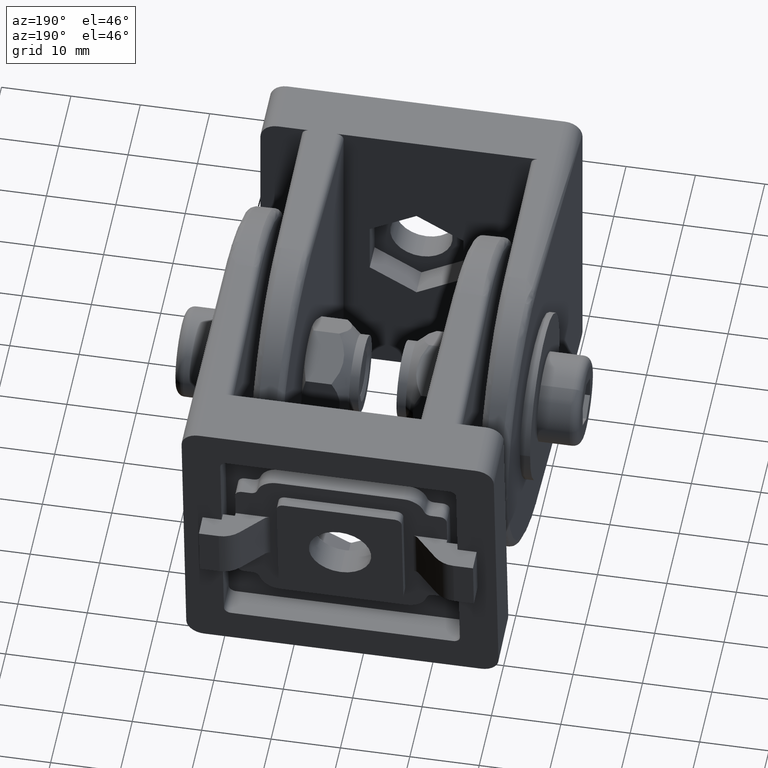
[diagram: clean part render]
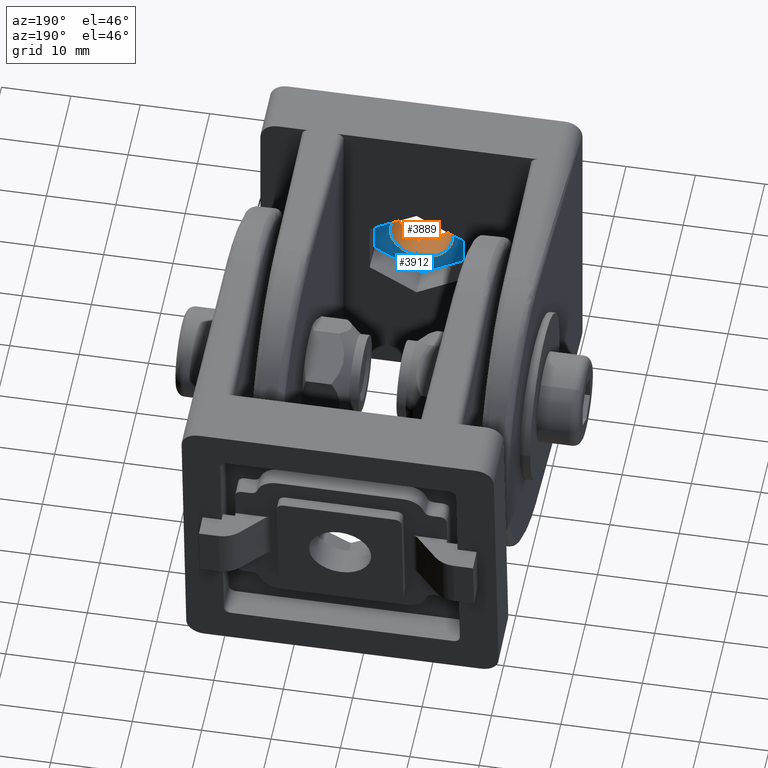
[diagram: same view with the hole feature highlighted: cylindrical wall and planar end face, labeled with their STEP entity ids]
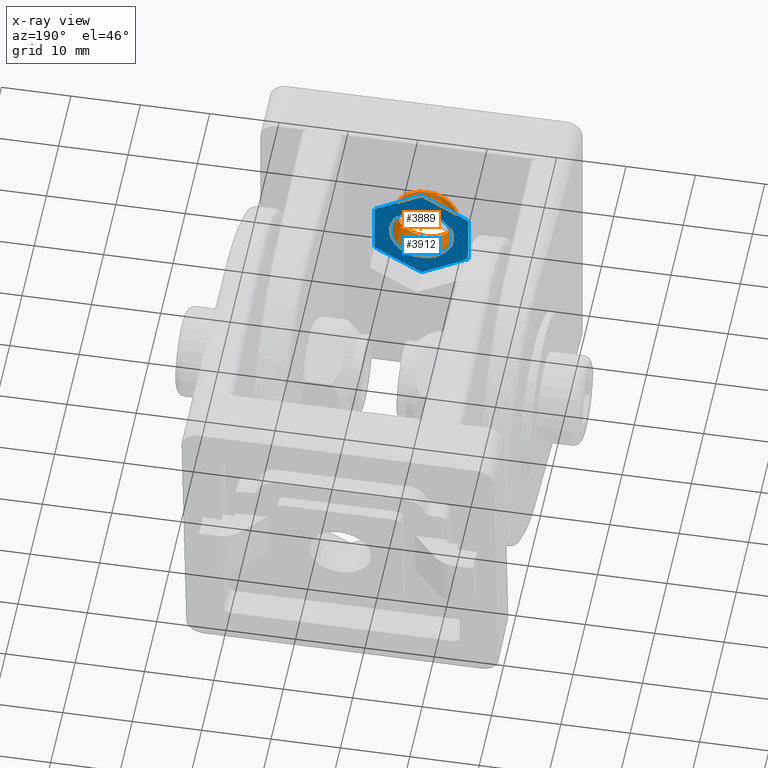
[diagram: x-ray of the same camera — body ghosted, the hole faces saturated]
A machine part, auxiliary view. The highlighted faces form one hole feature of diameter 9 mm: the cylindrical wall (entity #3889, orange) and its adjacent planar end face (entity #3912, blue) — they share a circular edge in the B-rep.
The next image is the same camera in x-ray (body ghosted, the hole faces saturated) — the bore reads through the body.
Wall:
#932=FACE_BOUND('',#1263,.T.);
#980=CYLINDRICAL_SURFACE('',#4129,4.5);
#1032=FACE_OUTER_BOUND('',#1262,.T.);
#1262=EDGE_LOOP('',(#2725));
#1263=EDGE_LOOP('',(#2726));
#1572=CIRCLE('',#4130,4.5);
#1573=CIRCLE('',#4131,4.5);
#1758=VERTEX_POINT('',#5734);
#1759=VERTEX_POINT('',#5736);
#2146=EDGE_CURVE('',#1758,#1758,#1572,.T.);
#2147=EDGE_CURVE('',#1759,#1759,#1573,.T.);
#2725=ORIENTED_EDGE('',*,*,#2146,.F.);
#2726=ORIENTED_EDGE('',*,*,#2147,.T.);
#3889=ADVANCED_FACE('',(#1032,#932),#980,.F.);
#4129=AXIS2_PLACEMENT_3D('',#5733,#4526,#4527);
#4130=AXIS2_PLACEMENT_3D('',#5735,#4528,#4529);
#4131=AXIS2_PLACEMENT_3D('',#5737,#4530,#4531);
#4526=DIRECTION('center_axis',(0.,-1.,0.));
#4527=DIRECTION('ref_axis',(0.,0.,-1.));
#4528=DIRECTION('center_axis',(2.56996070515083E-16,-1.,-2.56190093990169E-31));
#4529=DIRECTION('ref_axis',(-1.,-2.56996070515083E-16,-1.64599618650908E-47));
#4530=DIRECTION('center_axis',(0.,-1.,0.));
#4531=DIRECTION('ref_axis',(0.,0.,-1.));
#5733=CARTESIAN_POINT('Origin',(2.75545529808154E-15,54.,22.5));
#5734=CARTESIAN_POINT('',(2.75545529808154E-15,4.,18.));
#5735=CARTESIAN_POINT('Origin',(2.75545529808154E-15,4.,22.5));
#5736=CARTESIAN_POINT('',(2.75545529808154E-15,0.,18.));
#5737=CARTESIAN_POINT('Origin',(2.75545529808154E-15,0.,22.5));
End face:
#159=LINE('',#6230,#499);
#160=LINE('',#6232,#500);
#161=LINE('',#6234,#501);
#162=LINE('',#6236,#502);
#163=LINE('',#6238,#503);
#164=LINE('',#6239,#504);
#499=VECTOR('',#4712,7.79422863405995);
#500=VECTOR('',#4713,7.79422863405995);
#501=VECTOR('',#4714,7.79422863405995);
#502=VECTOR('',#4715,7.79422863405995);
#503=VECTOR('',#4716,7.79422863405995);
#504=VECTOR('',#4717,7.79422863405995);
#786=PLANE('',#4185);
#940=FACE_BOUND('',#1294,.T.);
#1055=FACE_OUTER_BOUND('',#1293,.T.);
#1293=EDGE_LOOP('',(#2884,#2885,#2886,#2887,#2888,#2889));
#1294=EDGE_LOOP('',(#2890));
#1572=CIRCLE('',#4130,4.5);
#1758=VERTEX_POINT('',#5734);
#1844=VERTEX_POINT('',#6228);
#1845=VERTEX_POINT('',#6229);
#1846=VERTEX_POINT('',#6231);
#1847=VERTEX_POINT('',#6233);
#1848=VERTEX_POINT('',#6235);
#1849=VERTEX_POINT('',#6237);
#2146=EDGE_CURVE('',#1758,#1758,#1572,.T.);
#2266=EDGE_CURVE('',#1844,#1845,#159,.T.);
#2267=EDGE_CURVE('',#1845,#1846,#160,.T.);
#2268=EDGE_CURVE('',#1846,#1847,#161,.T.);
#2269=EDGE_CURVE('',#1847,#1848,#162,.T.);
#2270=EDGE_CURVE('',#1848,#1849,#163,.T.);
#2271=EDGE_CURVE('',#1849,#1844,#164,.T.);
#2884=ORIENTED_EDGE('',*,*,#2266,.T.);
#2885=ORIENTED_EDGE('',*,*,#2267,.T.);
#2886=ORIENTED_EDGE('',*,*,#2268,.T.);
#2887=ORIENTED_EDGE('',*,*,#2269,.T.);
#2888=ORIENTED_EDGE('',*,*,#2270,.T.);
#2889=ORIENTED_EDGE('',*,*,#2271,.T.);
#2890=ORIENTED_EDGE('',*,*,#2146,.T.);
#3912=ADVANCED_FACE('',(#1055,#940),#786,.T.);
#4130=AXIS2_PLACEMENT_3D('',#5735,#4528,#4529);
#4185=AXIS2_PLACEMENT_3D('',#6227,#4710,#4711);
#4528=DIRECTION('center_axis',(2.56996070515083E-16,-1.,-2.56190093990169E-31));
#4529=DIRECTION('ref_axis',(-1.,-2.56996070515083E-16,-1.64599618650908E-47));
#4710=DIRECTION('center_axis',(-2.56996070515083E-16,1.,2.56190093990169E-31));
#4711=DIRECTION('ref_axis',(-1.,-4.44089209850063E-16,0.));
#4712=DIRECTION('',(-0.866025403784439,-2.22565125738838E-16,-0.499999999999999));
#4713=DIRECTION('',(-0.866025403784438,-2.22565125738839E-16,0.5));
#4714=DIRECTION('',(4.45130251477677E-16,0.,1.));
#4715=DIRECTION('',(0.866025403784439,2.22565125738838E-16,0.5));
#4716=DIRECTION('',(0.866025403784438,2.22565125738838E-16,-0.500000000000001));
#4717=DIRECTION('',(-4.45130251477677E-16,0.,-1.));
#5734=CARTESIAN_POINT('',(2.75545529808154E-15,4.,18.));
#5735=CARTESIAN_POINT('Origin',(2.75545529808154E-15,4.,22.5));
#6227=CARTESIAN_POINT('Origin',(2.84858109895346E-16,4.,14.7057713659401));
#6228=CARTESIAN_POINT('',(6.75,4.,18.60288568297));
#6229=CARTESIAN_POINT('',(-7.70988211545247E-16,4.,14.7057713659401));
#6230=CARTESIAN_POINT('',(6.75,4.,18.60288568297));
#6231=CARTESIAN_POINT('',(-6.75,4.,18.60288568297));
#6232=CARTESIAN_POINT('',(-7.70988211545247E-16,4.,14.7057713659401));
#6233=CARTESIAN_POINT('',(-6.74999999999999,4.,26.39711431703));
#6234=CARTESIAN_POINT('',(-6.75,4.,18.60288568297));
#6235=CARTESIAN_POINT('',(6.16790569236198E-15,4.,30.2942286340599));
#6236=CARTESIAN_POINT('',(-6.74999999999999,4.,26.39711431703));
#6237=CARTESIAN_POINT('',(6.75000000000001,4.,26.39711431703));
#6238=CARTESIAN_POINT('',(6.16790569236198E-15,4.,30.2942286340599));
#6239=CARTESIAN_POINT('',(6.75000000000001,4.,26.39711431703));